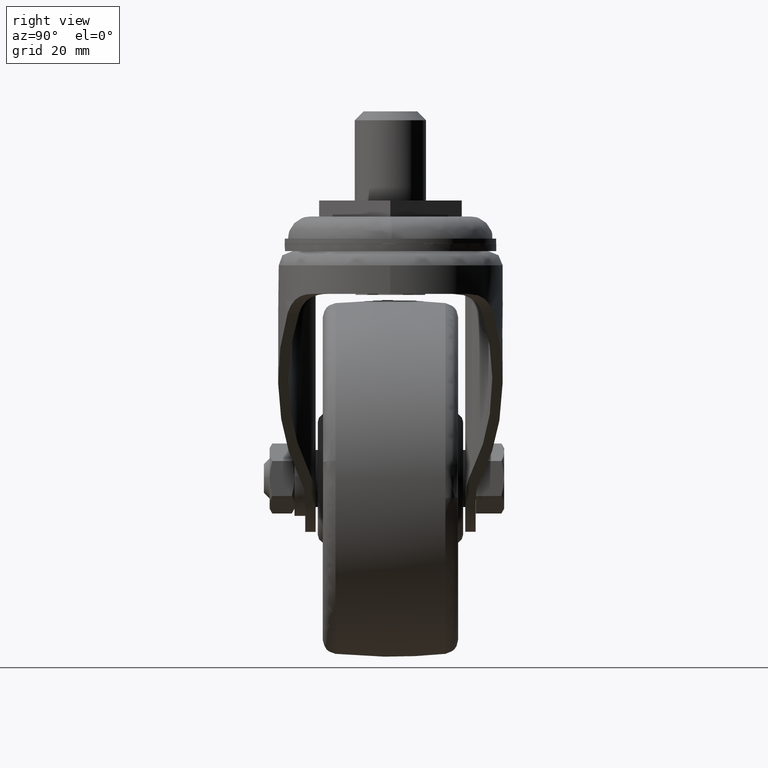
[diagram: clean part render]
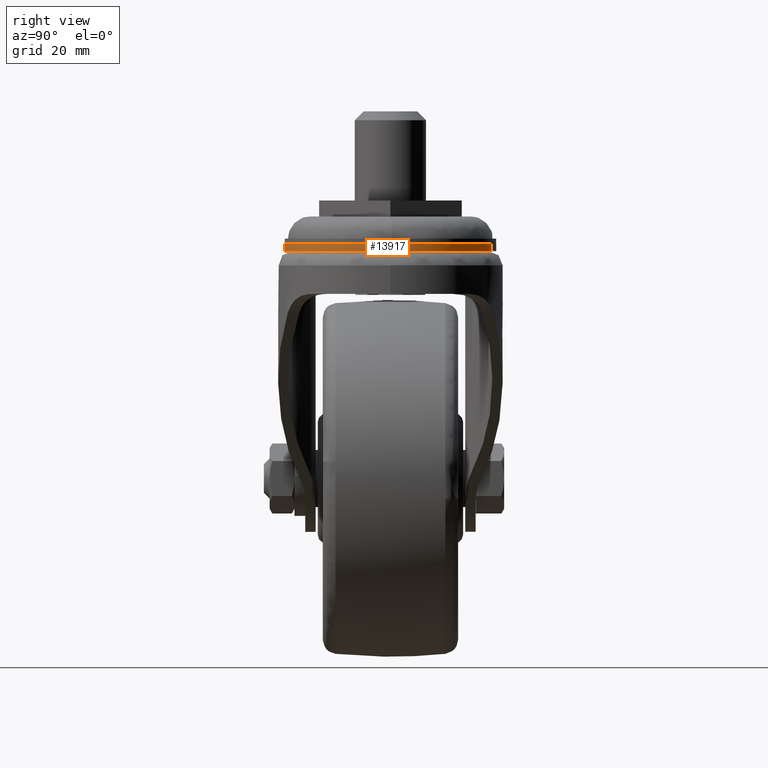
[diagram: same view with one face highlighted and labeled with its STEP entity id]
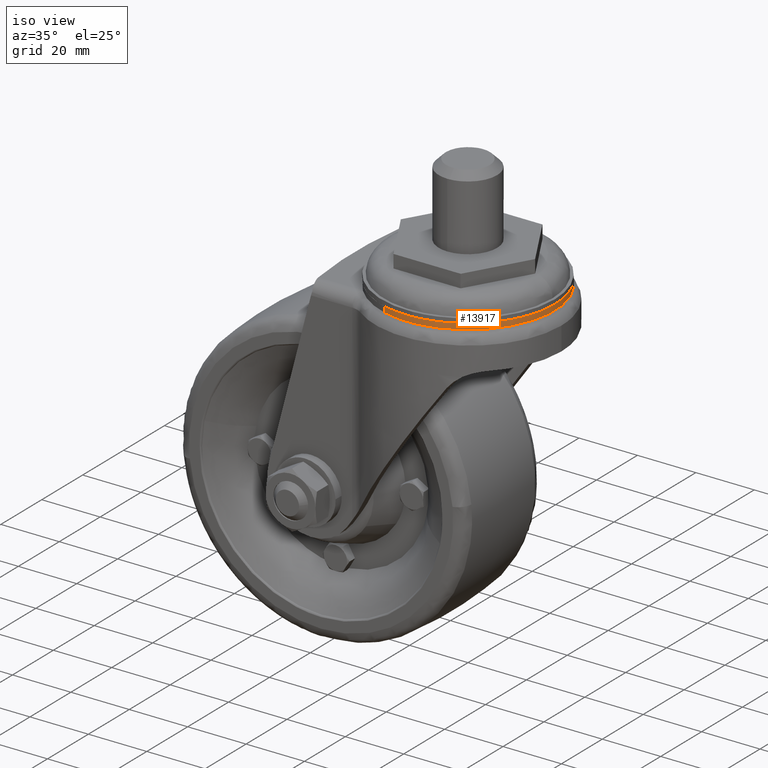
[diagram: same view with one face highlighted and labeled with its STEP entity id]
A machine part, right view. The second image highlights one B-rep face of the part: STEP entity #13917.
A second angle (iso view) of the same face is appended — the face is thin or edge-on in the first view.
In plain terms, the highlighted face is a freeform B-spline surface patch.
Its self-contained STEP definition (entity closure, byte-faithful):
#12883=CARTESIAN_POINT('',(8.841217058636495,28.353533834790110,-9.699999999999733));
#12884=VERTEX_POINT('',#12883);
#12898=CARTESIAN_POINT('',(-8.841180228658953,-28.353545319137229,-9.700000000000003));
#12899=VERTEX_POINT('',#12898);
#12900=CARTESIAN_POINT('',(8.841217058636495,28.353533834790106,-9.699999999999733));
#12901=CARTESIAN_POINT('',(9.774915215627663,28.062387478173395,-9.699999999999733));
#12902=CARTESIAN_POINT('',(10.687436057217679,27.710444069364900,-9.699999999999733));
#12903=CARTESIAN_POINT('',(29.699999999992713,20.377629015463910,-9.699999999999742));
#12904=CARTESIAN_POINT('',(29.699999999995160,-1.551097E-011,-9.699999999999827));
#12905=CARTESIAN_POINT('',(29.699999999997612,-20.377629015496147,-9.699999999999918));
#12906=CARTESIAN_POINT('',(10.687436057222779,-27.710444069391961,-9.699999999999974));
#12907=CARTESIAN_POINT('',(1.035132765134653,-31.433169478654246,-9.700000000000003));
#12908=CARTESIAN_POINT('',(-8.841180228658951,-28.353545319137233,-9.700000000000003));
#12916=(BOUNDED_CURVE()B_SPLINE_CURVE(2,(#12900,#12901,#12902,#12903,#12904,#12905,#12906,#12907,#12908),.UNSPECIFIED.,.F.,.U.)B_SPLINE_CURVE_WITH_KNOTS((3,2,2,2,3),(0.235595435389809,0.250000000000000,0.500000000000000,0.750000000000000,0.888917753601611),.UNSPECIFIED.)CURVE()GEOMETRIC_REPRESENTATION_ITEM()RATIONAL_B_SPLINE_CURVE((0.980949357853006,0.989892290296566,1.0,0.824574536319512,1.0,0.824574536319512,1.0,0.902521154643942,0.913374647052224))REPRESENTATION_ITEM(''));
#12917=EDGE_CURVE('',#12884,#12899,#12916,.T.);
#13815=CARTESIAN_POINT('',(-8.841173594729966,-28.353547387722060,-7.700000000000001));
#13816=VERTEX_POINT('',#13815);
#13817=CARTESIAN_POINT('',(-8.841173594729966,-28.353547387722060,-7.700000000000001));
#13818=CARTESIAN_POINT('',(-8.841180228658953,-28.353545319137229,-9.700000000000003));
#13819=QUASI_UNIFORM_CURVE('',1,(#13817,#13818),.UNSPECIFIED.,.F.,.U.);
#13820=EDGE_CURVE('',#13816,#12899,#13819,.T.);
#13837=CARTESIAN_POINT('',(8.841173594729966,28.353547387722081,-7.700000000000001));
#13838=VERTEX_POINT('',#13837);
#13854=CARTESIAN_POINT('',(8.841173594729966,28.353547387722081,-7.700000000000001));
#13855=CARTESIAN_POINT('',(8.841217058636495,28.353533834790110,-9.699999999999733));
#13856=QUASI_UNIFORM_CURVE('',1,(#13854,#13855),.UNSPECIFIED.,.F.,.U.);
#13857=EDGE_CURVE('',#13838,#12884,#13856,.T.);
#13864=CARTESIAN_POINT('',(8.841180231209393,28.353545318341979,-7.650000000000000));
#13865=CARTESIAN_POINT('',(37.194725549551364,19.512365087132597,-7.650000000000000));
#13866=CARTESIAN_POINT('',(28.353545318341968,-8.841180231209378,-7.650000000000000));
#13867=CARTESIAN_POINT('',(19.512365087132583,-37.194725549551357,-7.650000000000000));
#13868=CARTESIAN_POINT('',(-8.841180231209393,-28.353545318341951,-7.650000000000000));
#13869=CARTESIAN_POINT('',(8.841180231209393,28.353545318341979,-9.751250000000002));
#13870=CARTESIAN_POINT('',(37.194725549551364,19.512365087132597,-9.751250000000002));
#13871=CARTESIAN_POINT('',(28.353545318341968,-8.841180231209378,-9.751250000000002));
#13872=CARTESIAN_POINT('',(19.512365087132583,-37.194725549551357,-9.751250000000002));
#13873=CARTESIAN_POINT('',(-8.841180231209393,-28.353545318341951,-9.751250000000002));
#13881=(BOUNDED_SURFACE()B_SPLINE_SURFACE(2,1,((#13864,#13869),(#13865,#13870),(#13866,#13871),(#13867,#13872),(#13868,#13873)),.UNSPECIFIED.,.F.,.F.,.U.)B_SPLINE_SURFACE_WITH_KNOTS((3,2,3),(2,2),(0.0,49.208571209923697,98.417142419847394),(0.0,2.101250000000003),.UNSPECIFIED.)GEOMETRIC_REPRESENTATION_ITEM()RATIONAL_B_SPLINE_SURFACE(((1.0,1.0),(0.707106781186548,0.707106781186548),(1.0,1.0),(0.707106781186548,0.707106781186548),(1.0,1.0)))REPRESENTATION_ITEM('')SURFACE());
#13882=ORIENTED_EDGE('',*,*,#12917,.F.);
#13883=ORIENTED_EDGE('',*,*,#13857,.F.);
#13884=CARTESIAN_POINT('',(29.699999999999999,1.421085E-014,-7.700000000000000));
#13885=VERTEX_POINT('',#13884);
#13886=CARTESIAN_POINT('',(8.841173594729966,28.353547387722077,-7.700000000000001));
#13887=CARTESIAN_POINT('',(29.699999999999875,21.849369878308419,-7.700000000000001));
#13888=CARTESIAN_POINT('',(29.699999999999999,1.421085E-014,-7.700000000000000));
#13896=(BOUNDED_CURVE()B_SPLINE_CURVE(2,(#13886,#13887,#13888),.UNSPECIFIED.,.F.,.U.)B_SPLINE_CURVE_WITH_KNOTS((3,3),(0.300648827501144,0.500000000000000),.UNSPECIFIED.)CURVE()GEOMETRIC_REPRESENTATION_ITEM()RATIONAL_B_SPLINE_CURVE((0.905365937181482,0.766445573650297,1.0))REPRESENTATION_ITEM(''));
#13897=EDGE_CURVE('',#13838,#13885,#13896,.T.);
#13898=ORIENTED_EDGE('',*,*,#13897,.T.);
#13899=CARTESIAN_POINT('',(29.699999999999999,1.421085E-014,-7.700000000000000));
#13900=CARTESIAN_POINT('',(29.700000000000085,-29.699999999999704,-7.700000000000000));
#13901=CARTESIAN_POINT('',(2.127386E-013,-29.699999999999310,-7.700000000000000));
#13902=CARTESIAN_POINT('',(-4.523114737670704,-29.699999999999250,-7.700000000000000));
#13903=CARTESIAN_POINT('',(-8.841173594729966,-28.353547387722060,-7.700000000000001));
#13911=(BOUNDED_CURVE()B_SPLINE_CURVE(2,(#13899,#13900,#13901,#13902,#13903),.UNSPECIFIED.,.F.,.U.)B_SPLINE_CURVE_WITH_KNOTS((3,2,3),(0.500000000000000,0.750000000000000,0.800648827501144),.UNSPECIFIED.)CURVE()GEOMETRIC_REPRESENTATION_ITEM()RATIONAL_B_SPLINE_CURVE((1.0,0.707106781186547,1.0,0.940661207536250,0.905365937181482))REPRESENTATION_ITEM(''));
#13912=EDGE_CURVE('',#13885,#13816,#13911,.T.);
#13913=ORIENTED_EDGE('',*,*,#13912,.T.);
#13914=ORIENTED_EDGE('',*,*,#13820,.T.);
#13915=EDGE_LOOP('',(#13882,#13883,#13898,#13913,#13914));
#13916=FACE_OUTER_BOUND('',#13915,.T.);
#13917=ADVANCED_FACE('',(#13916),#13881,.T.);